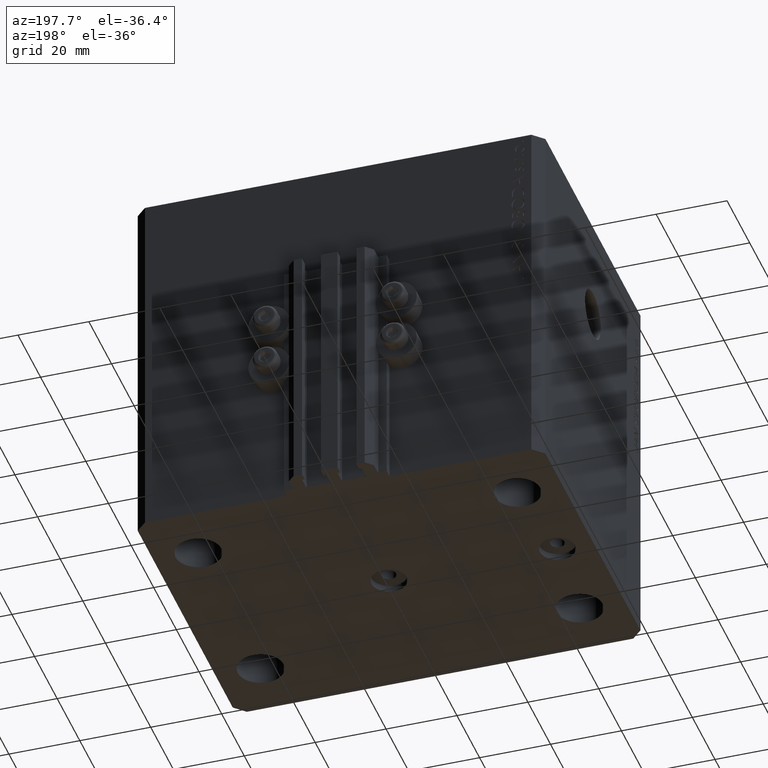
[diagram: clean part render]
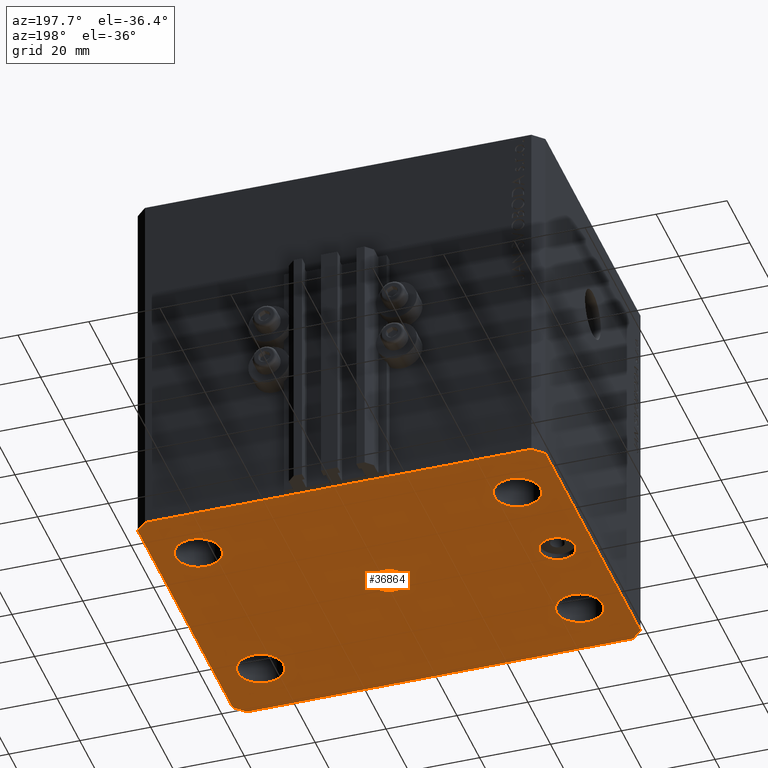
[diagram: same view with one face highlighted and labeled with its STEP entity id]
A machine part, auxiliary view. The second image highlights one B-rep face of the part: STEP entity #36864.
In plain terms, the highlighted planar face has unit normal (0, 0, 1).
Its self-contained STEP definition (entity closure, byte-faithful):
#241 = DIRECTION ( 'NONE',  ( -0.000000000000000000, -0.000000000000000000, -1.000000000000000000 ) ) ;
#439 = ORIENTED_EDGE ( 'NONE', *, *, #42681, .F. ) ;
#800 = CARTESIAN_POINT ( 'NONE',  ( 57.50000000000055422, 41.99999999999997868, -105.0000000000000000 ) ) ;
#1425 = CARTESIAN_POINT ( 'NONE',  ( -47.50000000000000000, 0.000000000000000000, -105.0000000000000000 ) ) ;
#1548 = ORIENTED_EDGE ( 'NONE', *, *, #38900, .F. ) ;
#1585 = DIRECTION ( 'NONE',  ( 1.000000000000000000, 1.273191542001326317E-16, 0.000000000000000000 ) ) ;
#2287 = ORIENTED_EDGE ( 'NONE', *, *, #14407, .F. ) ;
#2333 = CARTESIAN_POINT ( 'NONE',  ( -57.50000000000000711, -42.00000000000000711, -105.0000000000000000 ) ) ;
#2410 = CARTESIAN_POINT ( 'NONE',  ( -47.50000000000000000, 0.000000000000000000, -105.0000000000000000 ) ) ;
#2726 = FACE_BOUND ( 'NONE', #43784, .T. ) ;
#3361 = CARTESIAN_POINT ( 'NONE',  ( 45.00000000000000000, 27.49999999999999289, -105.0000000000000000 ) ) ;
#3570 = LINE ( 'NONE', #7156, #14423 ) ;
#3786 = VECTOR ( 'NONE', #9335, 1000.000000000000000 ) ;
#3962 = CARTESIAN_POINT ( 'NONE',  ( -5.000000000000000000, 0.000000000000000000, -105.0000000000000000 ) ) ;
#4080 = VERTEX_POINT ( 'NONE', #29000 ) ;
#4112 = EDGE_CURVE ( 'NONE', #22467, #13820, #45505, .T. ) ;
#4546 = VERTEX_POINT ( 'NONE', #15467 ) ;
#4623 = CARTESIAN_POINT ( 'NONE',  ( -54.49999999999999289, 45.00000000000000000, -105.0000000000000000 ) ) ;
#4706 = DIRECTION ( 'NONE',  ( -0.000000000000000000, -0.000000000000000000, -1.000000000000000000 ) ) ;
#5243 = CARTESIAN_POINT ( 'NONE',  ( -54.49999999999999289, 45.00000000000000000, -105.0000000000000000 ) ) ;
#5569 = DIRECTION ( 'NONE',  ( -1.000000000000000000, 0.000000000000000000, 0.000000000000000000 ) ) ;
#6105 = CARTESIAN_POINT ( 'NONE',  ( -57.49999999999998579, 42.00000000000000711, -105.0000000000000000 ) ) ;
#6576 = EDGE_CURVE ( 'NONE', #46239, #10254, #43275, .T. ) ;
#6775 = CIRCLE ( 'NONE', #42707, 6.499999999999999112 ) ;
#6957 = ORIENTED_EDGE ( 'NONE', *, *, #19872, .F. ) ;
#7156 = CARTESIAN_POINT ( 'NONE',  ( 54.50000000000059686, 45.00000000000002842, -105.0000000000000000 ) ) ;
#7646 = EDGE_LOOP ( 'NONE', ( #41936, #40753 ) ) ;
#7829 = CARTESIAN_POINT ( 'NONE',  ( -45.00000000000000000, 27.49999999999999645, -105.0000000000000000 ) ) ;
#8210 = ORIENTED_EDGE ( 'NONE', *, *, #13474, .F. ) ;
#8291 = DIRECTION ( 'NONE',  ( -0.000000000000000000, -0.000000000000000000, -1.000000000000000000 ) ) ;
#8529 = CARTESIAN_POINT ( 'NONE',  ( -54.50000000000000711, -45.00000000000000000, -105.0000000000000000 ) ) ;
#8536 = DIRECTION ( 'NONE',  ( -2.478176394252581141E-16, -1.000000000000000000, 0.000000000000000000 ) ) ;
#8779 = AXIS2_PLACEMENT_3D ( 'NONE', #32113, #43623, #39783 ) ;
#9335 = DIRECTION ( 'NONE',  ( -0.7071067811865369146, 0.7071067811865581199, 0.000000000000000000 ) ) ;
#9426 = CIRCLE ( 'NONE', #27774, 6.499999999999999112 ) ;
#9932 = CIRCLE ( 'NONE', #27551, 5.000000000000000000 ) ;
#10135 = DIRECTION ( 'NONE',  ( 0.000000000000000000, 0.000000000000000000, 1.000000000000000000 ) ) ;
#10254 = VERTEX_POINT ( 'NONE', #22875 ) ;
#10311 = CARTESIAN_POINT ( 'NONE',  ( -51.50000000000000000, 27.49999999999999645, -105.0000000000000000 ) ) ;
#10524 = DIRECTION ( 'NONE',  ( 1.000000000000000000, 0.000000000000000000, 0.000000000000000000 ) ) ;
#10902 = AXIS2_PLACEMENT_3D ( 'NONE', #13720, #10135, #32166 ) ;
#12054 = CARTESIAN_POINT ( 'NONE',  ( 54.50000000000000711, -44.99999999999998579, -105.0000000000000000 ) ) ;
#12186 = LINE ( 'NONE', #5243, #36202 ) ;
#12254 = EDGE_CURVE ( 'NONE', #32702, #31311, #14773, .T. ) ;
#12501 = VERTEX_POINT ( 'NONE', #37002 ) ;
#12744 = DIRECTION ( 'NONE',  ( 0.000000000000000000, 0.000000000000000000, -1.000000000000000000 ) ) ;
#12831 = VECTOR ( 'NONE', #8536, 1000.000000000000000 ) ;
#12847 = VERTEX_POINT ( 'NONE', #33043 ) ;
#12926 = CARTESIAN_POINT ( 'NONE',  ( 57.50000000000055422, 41.99999999999997868, -105.0000000000000000 ) ) ;
#13163 = LINE ( 'NONE', #20132, #30829 ) ;
#13292 = LINE ( 'NONE', #20957, #18302 ) ;
#13474 = EDGE_CURVE ( 'NONE', #39515, #29154, #38882, .T. ) ;
#13480 = FACE_BOUND ( 'NONE', #32221, .T. ) ;
#13718 = ORIENTED_EDGE ( 'NONE', *, *, #42683, .F. ) ;
#13720 = CARTESIAN_POINT ( 'NONE',  ( 0.000000000000000000, 0.000000000000000000, -105.0000000000000000 ) ) ;
#13733 = AXIS2_PLACEMENT_3D ( 'NONE', #24734, #39348, #24503 ) ;
#13781 = VERTEX_POINT ( 'NONE', #4623 ) ;
#13820 = VERTEX_POINT ( 'NONE', #17018 ) ;
#14205 = CARTESIAN_POINT ( 'NONE',  ( 51.49999999999998579, -27.50000000000000355, -105.0000000000000000 ) ) ;
#14276 = DIRECTION ( 'NONE',  ( -1.000000000000000000, 0.000000000000000000, 0.000000000000000000 ) ) ;
#14407 = EDGE_CURVE ( 'NONE', #33824, #43904, #37696, .T. ) ;
#14423 = VECTOR ( 'NONE', #21988, 1000.000000000000000 ) ;
#14536 = CIRCLE ( 'NONE', #13733, 6.499999999999999112 ) ;
#14557 = CIRCLE ( 'NONE', #22185, 6.499999999999999112 ) ;
#14773 = LINE ( 'NONE', #44005, #12831 ) ;
#15141 = DIRECTION ( 'NONE',  ( -1.000000000000000000, 0.000000000000000000, 0.000000000000000000 ) ) ;
#15467 = CARTESIAN_POINT ( 'NONE',  ( -38.49999999999998579, -27.50000000000000355, -105.0000000000000000 ) ) ;
#15878 = EDGE_CURVE ( 'NONE', #29154, #39515, #45833, .T. ) ;
#16657 = AXIS2_PLACEMENT_3D ( 'NONE', #3361, #241, #10524 ) ;
#16712 = DIRECTION ( 'NONE',  ( -0.000000000000000000, -0.000000000000000000, -1.000000000000000000 ) ) ;
#17018 = CARTESIAN_POINT ( 'NONE',  ( 38.49999999999998579, -27.50000000000000355, -105.0000000000000000 ) ) ;
#17321 = FACE_OUTER_BOUND ( 'NONE', #45219, .T. ) ;
#17352 = CARTESIAN_POINT ( 'NONE',  ( -52.50000000000000000, 0.000000000000000000, -105.0000000000000000 ) ) ;
#17389 = ORIENTED_EDGE ( 'NONE', *, *, #42310, .F. ) ;
#17543 = AXIS2_PLACEMENT_3D ( 'NONE', #1425, #23215, #15141 ) ;
#17632 = VERTEX_POINT ( 'NONE', #37099 ) ;
#18302 = VECTOR ( 'NONE', #35348, 1000.000000000000000 ) ;
#19040 = VECTOR ( 'NONE', #19487, 1000.000000000000000 ) ;
#19313 = LINE ( 'NONE', #8529, #39033 ) ;
#19487 = DIRECTION ( 'NONE',  ( 0.7071067811865483499, 0.7071067811865466846, 0.000000000000000000 ) ) ;
#19835 = CARTESIAN_POINT ( 'NONE',  ( -42.50000000000000000, 6.123233995736762338E-16, -105.0000000000000000 ) ) ;
#19872 = EDGE_CURVE ( 'NONE', #32279, #40021, #45092, .T. ) ;
#19881 = DIRECTION ( 'NONE',  ( 1.000000000000000000, 0.000000000000000000, 0.000000000000000000 ) ) ;
#19921 = ORIENTED_EDGE ( 'NONE', *, *, #4112, .F. ) ;
#20132 = CARTESIAN_POINT ( 'NONE',  ( -57.50000000000000711, -42.00000000000000711, -105.0000000000000000 ) ) ;
#20167 = CARTESIAN_POINT ( 'NONE',  ( 0.000000000000000000, 0.000000000000000000, -105.0000000000000000 ) ) ;
#20195 = EDGE_CURVE ( 'NONE', #43904, #21438, #13292, .T. ) ;
#20372 = DIRECTION ( 'NONE',  ( 0.000000000000000000, 0.000000000000000000, -1.000000000000000000 ) ) ;
#20392 = ORIENTED_EDGE ( 'NONE', *, *, #12254, .F. ) ;
#20957 = CARTESIAN_POINT ( 'NONE',  ( 57.50000000000000711, -41.99999999999998579, -105.0000000000000000 ) ) ;
#21257 = EDGE_CURVE ( 'NONE', #4546, #12847, #14536, .T. ) ;
#21438 = VERTEX_POINT ( 'NONE', #800 ) ;
#21988 = DIRECTION ( 'NONE',  ( -1.000000000000000000, -2.546383084002638829E-16, 0.000000000000000000 ) ) ;
#22185 = AXIS2_PLACEMENT_3D ( 'NONE', #23242, #45739, #19881 ) ;
#22467 = VERTEX_POINT ( 'NONE', #14205 ) ;
#22754 = EDGE_LOOP ( 'NONE', ( #1548, #31510 ) ) ;
#22788 = EDGE_CURVE ( 'NONE', #17632, #13781, #3570, .T. ) ;
#22875 = CARTESIAN_POINT ( 'NONE',  ( 5.000000000000000000, 6.123233995736765296E-16, -105.0000000000000000 ) ) ;
#23069 = EDGE_CURVE ( 'NONE', #26970, #12501, #6775, .T. ) ;
#23215 = DIRECTION ( 'NONE',  ( 0.000000000000000000, 0.000000000000000000, -1.000000000000000000 ) ) ;
#23242 = CARTESIAN_POINT ( 'NONE',  ( -44.99999999999998579, -27.50000000000000355, -105.0000000000000000 ) ) ;
#23794 = CARTESIAN_POINT ( 'NONE',  ( 45.00000000000000000, 27.49999999999999289, -105.0000000000000000 ) ) ;
#23838 = EDGE_CURVE ( 'NONE', #21438, #17632, #31127, .T. ) ;
#24186 = DIRECTION ( 'NONE',  ( 0.7071067811865491270, -0.7071067811865459074, 0.000000000000000000 ) ) ;
#24503 = DIRECTION ( 'NONE',  ( 1.000000000000000000, 0.000000000000000000, 0.000000000000000000 ) ) ;
#24689 = CIRCLE ( 'NONE', #29327, 6.499999999999999112 ) ;
#24734 = CARTESIAN_POINT ( 'NONE',  ( -44.99999999999998579, -27.50000000000000355, -105.0000000000000000 ) ) ;
#25255 = ORIENTED_EDGE ( 'NONE', *, *, #23838, .F. ) ;
#26926 = DIRECTION ( 'NONE',  ( -0.000000000000000000, -0.000000000000000000, -1.000000000000000000 ) ) ;
#26970 = VERTEX_POINT ( 'NONE', #10311 ) ;
#27551 = AXIS2_PLACEMENT_3D ( 'NONE', #20167, #12744, #5569 ) ;
#27774 = AXIS2_PLACEMENT_3D ( 'NONE', #7829, #8291, #37752 ) ;
#28340 = FACE_BOUND ( 'NONE', #45346, .T. ) ;
#28811 = FACE_BOUND ( 'NONE', #7646, .T. ) ;
#29000 = CARTESIAN_POINT ( 'NONE',  ( -54.50000000000000711, -45.00000000000000000, -105.0000000000000000 ) ) ;
#29154 = VERTEX_POINT ( 'NONE', #42076 ) ;
#29327 = AXIS2_PLACEMENT_3D ( 'NONE', #31317, #16712, #37819 ) ;
#29362 = CIRCLE ( 'NONE', #43896, 4.999999999999997335 ) ;
#30348 = CARTESIAN_POINT ( 'NONE',  ( 57.50000000000000711, -41.99999999999998579, -105.0000000000000000 ) ) ;
#30794 = EDGE_CURVE ( 'NONE', #10254, #46239, #9932, .T. ) ;
#30829 = VECTOR ( 'NONE', #24186, 1000.000000000000114 ) ;
#31053 = EDGE_CURVE ( 'NONE', #12847, #4546, #14557, .T. ) ;
#31127 = LINE ( 'NONE', #12926, #3786 ) ;
#31311 = VERTEX_POINT ( 'NONE', #2333 ) ;
#31317 = CARTESIAN_POINT ( 'NONE',  ( 44.99999999999998579, -27.50000000000000355, -105.0000000000000000 ) ) ;
#31510 = ORIENTED_EDGE ( 'NONE', *, *, #23069, .F. ) ;
#32070 = CARTESIAN_POINT ( 'NONE',  ( 54.50000000000000711, -44.99999999999998579, -105.0000000000000000 ) ) ;
#32112 = ORIENTED_EDGE ( 'NONE', *, *, #15878, .F. ) ;
#32113 = CARTESIAN_POINT ( 'NONE',  ( 44.99999999999998579, -27.50000000000000355, -105.0000000000000000 ) ) ;
#32166 = DIRECTION ( 'NONE',  ( 1.000000000000000000, 0.000000000000000000, -0.000000000000000000 ) ) ;
#32221 = EDGE_LOOP ( 'NONE', ( #40189, #6957 ) ) ;
#32226 = ORIENTED_EDGE ( 'NONE', *, *, #21257, .F. ) ;
#32247 = CARTESIAN_POINT ( 'NONE',  ( 0.000000000000000000, 0.000000000000000000, -105.0000000000000000 ) ) ;
#32279 = VERTEX_POINT ( 'NONE', #19835 ) ;
#32521 = EDGE_CURVE ( 'NONE', #4080, #33824, #19313, .T. ) ;
#32702 = VERTEX_POINT ( 'NONE', #6105 ) ;
#33043 = CARTESIAN_POINT ( 'NONE',  ( -51.49999999999998579, -27.50000000000000355, -105.0000000000000000 ) ) ;
#33441 = CARTESIAN_POINT ( 'NONE',  ( -45.00000000000000000, 27.49999999999999645, -105.0000000000000000 ) ) ;
#33824 = VERTEX_POINT ( 'NONE', #32070 ) ;
#34595 = DIRECTION ( 'NONE',  ( 1.000000000000000000, 0.000000000000000000, 0.000000000000000000 ) ) ;
#34990 = DIRECTION ( 'NONE',  ( -1.000000000000000000, 0.000000000000000000, 0.000000000000000000 ) ) ;
#35348 = DIRECTION ( 'NONE',  ( 6.443258625056715108E-15, 1.000000000000000000, 0.000000000000000000 ) ) ;
#35533 = FACE_BOUND ( 'NONE', #41823, .T. ) ;
#36202 = VECTOR ( 'NONE', #38750, 1000.000000000000000 ) ;
#36864 = ADVANCED_FACE ( 'NONE', ( #28811, #13480, #35533, #2726, #28340, #46537, #17321 ), #43430, .F. ) ;
#37002 = CARTESIAN_POINT ( 'NONE',  ( -38.50000000000000000, 27.49999999999999645, -105.0000000000000000 ) ) ;
#37099 = CARTESIAN_POINT ( 'NONE',  ( 54.50000000000059686, 45.00000000000002842, -105.0000000000000000 ) ) ;
#37513 = DIRECTION ( 'NONE',  ( 1.000000000000000000, 0.000000000000000000, 0.000000000000000000 ) ) ;
#37696 = LINE ( 'NONE', #12054, #19040 ) ;
#37752 = DIRECTION ( 'NONE',  ( 1.000000000000000000, 0.000000000000000000, 0.000000000000000000 ) ) ;
#37819 = DIRECTION ( 'NONE',  ( 1.000000000000000000, 0.000000000000000000, 0.000000000000000000 ) ) ;
#38750 = DIRECTION ( 'NONE',  ( -0.7071067811865483499, -0.7071067811865466846, 0.000000000000000000 ) ) ;
#38882 = CIRCLE ( 'NONE', #45764, 6.499999999999999112 ) ;
#38900 = EDGE_CURVE ( 'NONE', #12501, #26970, #9426, .T. ) ;
#39033 = VECTOR ( 'NONE', #1585, 1000.000000000000000 ) ;
#39348 = DIRECTION ( 'NONE',  ( -0.000000000000000000, -0.000000000000000000, -1.000000000000000000 ) ) ;
#39434 = AXIS2_PLACEMENT_3D ( 'NONE', #32247, #47096, #14276 ) ;
#39515 = VERTEX_POINT ( 'NONE', #41867 ) ;
#39783 = DIRECTION ( 'NONE',  ( 1.000000000000000000, 0.000000000000000000, 0.000000000000000000 ) ) ;
#40021 = VERTEX_POINT ( 'NONE', #17352 ) ;
#40189 = ORIENTED_EDGE ( 'NONE', *, *, #43368, .F. ) ;
#40753 = ORIENTED_EDGE ( 'NONE', *, *, #30794, .F. ) ;
#41823 = EDGE_LOOP ( 'NONE', ( #32226, #46294 ) ) ;
#41867 = CARTESIAN_POINT ( 'NONE',  ( 38.50000000000000000, 27.49999999999999289, -105.0000000000000000 ) ) ;
#41936 = ORIENTED_EDGE ( 'NONE', *, *, #6576, .F. ) ;
#42076 = CARTESIAN_POINT ( 'NONE',  ( 51.50000000000000000, 27.49999999999999289, -105.0000000000000000 ) ) ;
#42310 = EDGE_CURVE ( 'NONE', #31311, #4080, #13163, .T. ) ;
#42490 = ORIENTED_EDGE ( 'NONE', *, *, #20195, .F. ) ;
#42547 = ORIENTED_EDGE ( 'NONE', *, *, #22788, .F. ) ;
#42681 = EDGE_CURVE ( 'NONE', #13781, #32702, #12186, .T. ) ;
#42683 = EDGE_CURVE ( 'NONE', #13820, #22467, #24689, .T. ) ;
#42707 = AXIS2_PLACEMENT_3D ( 'NONE', #33441, #4706, #37513 ) ;
#43275 = CIRCLE ( 'NONE', #39434, 5.000000000000000000 ) ;
#43368 = EDGE_CURVE ( 'NONE', #40021, #32279, #29362, .T. ) ;
#43430 = PLANE ( 'NONE',  #10902 ) ;
#43623 = DIRECTION ( 'NONE',  ( -0.000000000000000000, -0.000000000000000000, -1.000000000000000000 ) ) ;
#43784 = EDGE_LOOP ( 'NONE', ( #19921, #13718 ) ) ;
#43896 = AXIS2_PLACEMENT_3D ( 'NONE', #2410, #20372, #34990 ) ;
#43904 = VERTEX_POINT ( 'NONE', #30348 ) ;
#44005 = CARTESIAN_POINT ( 'NONE',  ( -57.49999999999998579, 42.00000000000000711, -105.0000000000000000 ) ) ;
#45092 = CIRCLE ( 'NONE', #17543, 4.999999999999997335 ) ;
#45219 = EDGE_LOOP ( 'NONE', ( #42547, #25255, #42490, #2287, #46499, #17389, #20392, #439 ) ) ;
#45346 = EDGE_LOOP ( 'NONE', ( #32112, #8210 ) ) ;
#45505 = CIRCLE ( 'NONE', #8779, 6.499999999999999112 ) ;
#45739 = DIRECTION ( 'NONE',  ( -0.000000000000000000, -0.000000000000000000, -1.000000000000000000 ) ) ;
#45764 = AXIS2_PLACEMENT_3D ( 'NONE', #23794, #26926, #34595 ) ;
#45833 = CIRCLE ( 'NONE', #16657, 6.499999999999999112 ) ;
#46239 = VERTEX_POINT ( 'NONE', #3962 ) ;
#46294 = ORIENTED_EDGE ( 'NONE', *, *, #31053, .F. ) ;
#46499 = ORIENTED_EDGE ( 'NONE', *, *, #32521, .F. ) ;
#46537 = FACE_BOUND ( 'NONE', #22754, .T. ) ;
#47096 = DIRECTION ( 'NONE',  ( 0.000000000000000000, 0.000000000000000000, -1.000000000000000000 ) ) ;